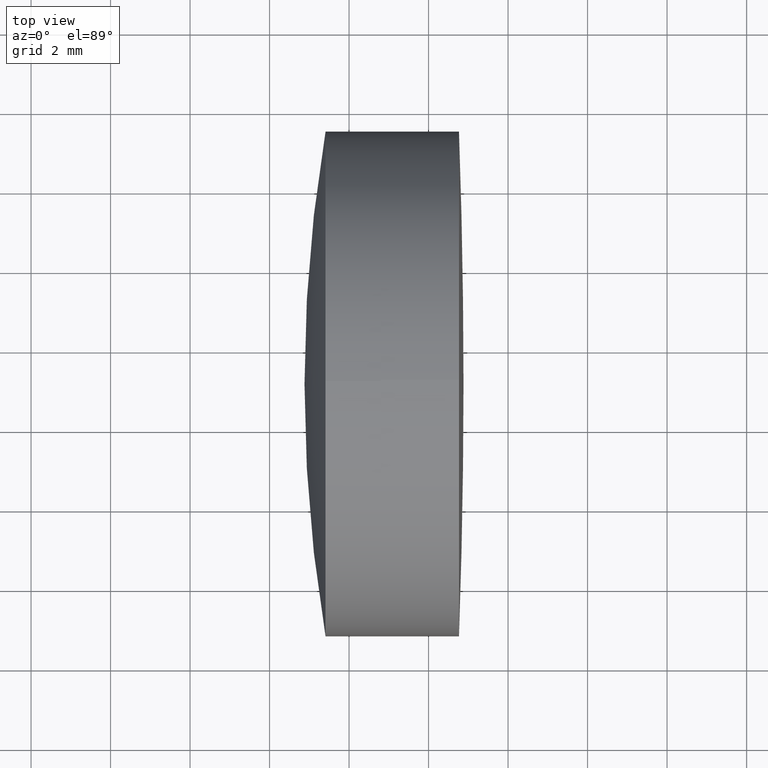
[diagram: clean part render]
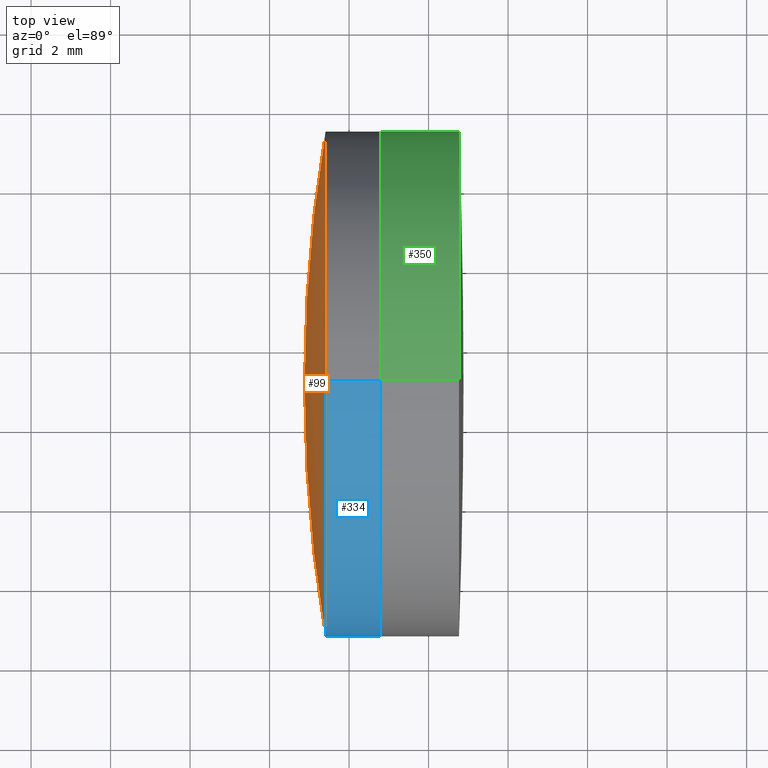
[diagram: same view with three faces highlighted in distinct colors, each labeled with its STEP entity id]
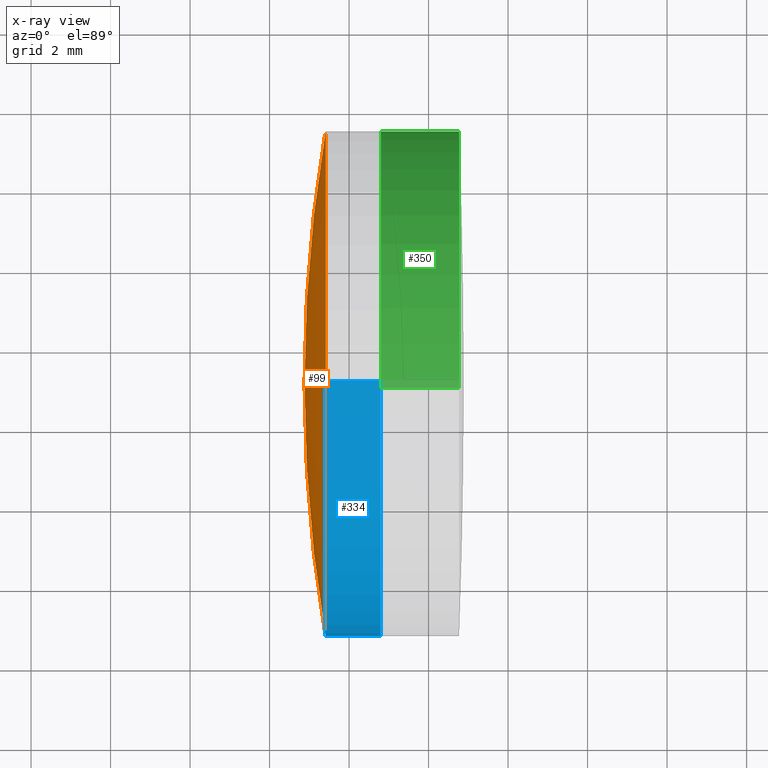
[diagram: x-ray of the same camera — body ghosted, the three highlighted faces saturated]
A machine part, top view with three faces highlighted in distinct colors.
The next image is the same camera in x-ray (body ghosted, the three faces saturated) — at least one of them is partly hidden behind the body in this view.
Their STEP definitions:

[orange] entity #99 — the highlighted spherical surface has radius 38.36 mm.
#4 = CARTESIAN_POINT ( 'NONE',  ( 39.23836059067149762, 7.105468109940514587, 7.561397270752400406E-15 ) ) ;
#18 = CIRCLE ( 'NONE', #285, 6.349999999999997868 ) ;
#44 = DIRECTION ( 'NONE',  ( 0.000000000000000000, -0.9999851727800013190, -0.005445568854653790904 ) ) ;
#53 = DIRECTION ( 'NONE',  ( 1.000000000000000000, -3.773785889902083684E-17, 1.040834085586084010E-16 ) ) ;
#55 = EDGE_CURVE ( 'NONE', #251, #302, #18, .T. ) ;
#57 = AXIS2_PLACEMENT_3D ( 'NONE', #4, #180, #44 ) ;
#67 = CARTESIAN_POINT ( 'NONE',  ( 1.407591367722823339, 0.7555622627875118180, -0.03457936222704791757 ) ) ;
#68 = EDGE_LOOP ( 'NONE', ( #215, #291, #382, #261 ) ) ;
#95 = AXIS2_PLACEMENT_3D ( 'NONE', #399, #126, #267 ) ;
#99 = ADVANCED_FACE ( 'NONE', ( #297 ), #166, .T. ) ;
#100 = CARTESIAN_POINT ( 'NONE',  ( 0.8783605906714925249, 7.105468109940518140, 3.581548665704631301E-15 ) ) ;
#103 = DIRECTION ( 'NONE',  ( 0.000000000000000000, 0.9999851727800013190, 0.005445568854653913202 ) ) ;
#122 = VERTEX_POINT ( 'NONE', #264 ) ;
#126 = DIRECTION ( 'NONE',  ( -1.042873694000733349E-16, -0.005445568854653913202, 0.9999851727800013190 ) ) ;
#137 = AXIS2_PLACEMENT_3D ( 'NONE', #441, #443, #103 ) ;
#139 = VERTEX_POINT ( 'NONE', #100 ) ;
#145 = AXIS2_PLACEMENT_3D ( 'NONE', #313, #178, #369 ) ;
#157 = CARTESIAN_POINT ( 'NONE',  ( 1.407591367722822895, 7.105468109940516364, 3.623841861633804095E-15 ) ) ;
#166 = SPHERICAL_SURFACE ( 'NONE', #95, 38.35999999999999943 ) ;
#178 = DIRECTION ( 'NONE',  ( 1.000000000000000000, -3.773785889902083684E-17, 1.040834085586084010E-16 ) ) ;
#180 = DIRECTION ( 'NONE',  ( -1.042873694000733349E-16, -0.005445568854653790904, 0.9999851727800014300 ) ) ;
#198 = CARTESIAN_POINT ( 'NONE',  ( 1.407591367722822229, 7.070888747713464539, 6.349905847153010541 ) ) ;
#215 = ORIENTED_EDGE ( 'NONE', *, *, #372, .F. ) ;
#216 = CIRCLE ( 'NONE', #137, 38.35999999999999943 ) ;
#251 = VERTEX_POINT ( 'NONE', #198 ) ;
#261 = ORIENTED_EDGE ( 'NONE', *, *, #296, .F. ) ;
#264 = CARTESIAN_POINT ( 'NONE',  ( 1.407591367722823783, 13.45537395709352069, 0.03457936222705594587 ) ) ;
#267 = DIRECTION ( 'NONE',  ( 0.000000000000000000, 0.9999851727800013190, 0.005445568854653913202 ) ) ;
#285 = AXIS2_PLACEMENT_3D ( 'NONE', #157, #53, #419 ) ;
#286 = CIRCLE ( 'NONE', #57, 38.35999999999999943 ) ;
#291 = ORIENTED_EDGE ( 'NONE', *, *, #439, .T. ) ;
#296 = EDGE_CURVE ( 'NONE', #122, #251, #336, .T. ) ;
#297 = FACE_OUTER_BOUND ( 'NONE', #68, .T. ) ;
#302 = VERTEX_POINT ( 'NONE', #67 ) ;
#313 = CARTESIAN_POINT ( 'NONE',  ( 1.407591367722822895, 7.105468109940516364, 3.623841861633804095E-15 ) ) ;
#336 = CIRCLE ( 'NONE', #145, 6.349999999999997868 ) ;
#369 = DIRECTION ( 'NONE',  ( 1.024442997624099077E-16, 0.005445568854653865497, -0.9999851727800014300 ) ) ;
#372 = EDGE_CURVE ( 'NONE', #139, #122, #216, .T. ) ;
#382 = ORIENTED_EDGE ( 'NONE', *, *, #55, .F. ) ;
#399 = CARTESIAN_POINT ( 'NONE',  ( 39.23836059067149762, 7.105468109940514587, 7.561397270752400406E-15 ) ) ;
#419 = DIRECTION ( 'NONE',  ( 1.024442997624099077E-16, 0.005445568854653865497, -0.9999851727800014300 ) ) ;
#439 = EDGE_CURVE ( 'NONE', #139, #302, #286, .T. ) ;
#441 = CARTESIAN_POINT ( 'NONE',  ( 39.23836059067149762, 7.105468109940514587, 7.561397270752400406E-15 ) ) ;
#443 = DIRECTION ( 'NONE',  ( 1.042873694000733349E-16, 0.005445568854653913202, -0.9999851727800014300 ) ) ;

[blue] entity #334 — the highlighted cylindrical surface (partial cylindrical patch) has radius 6.35 mm, axis along (1, -0, 0).
#2 = CARTESIAN_POINT ( 'NONE',  ( 1.407591367722822895, 7.105468109940516364, 3.623841861633804095E-15 ) ) ;
#9 = DIRECTION ( 'NONE',  ( 1.000000000000000000, -3.773785889902083684E-17, 1.040834085586084010E-16 ) ) ;
#17 = DIRECTION ( 'NONE',  ( 1.000000000000000000, -3.773785889902083684E-17, 1.040834085586084010E-16 ) ) ;
#18 = CIRCLE ( 'NONE', #285, 6.349999999999997868 ) ;
#23 = EDGE_CURVE ( 'NONE', #251, #115, #86, .T. ) ;
#25 = AXIS2_PLACEMENT_3D ( 'NONE', #252, #9, #365 ) ;
#29 = ORIENTED_EDGE ( 'NONE', *, *, #55, .T. ) ;
#53 = DIRECTION ( 'NONE',  ( 1.000000000000000000, -3.773785889902083684E-17, 1.040834085586084010E-16 ) ) ;
#55 = EDGE_CURVE ( 'NONE', #251, #302, #18, .T. ) ;
#64 = CIRCLE ( 'NONE', #25, 6.349999999999997868 ) ;
#67 = CARTESIAN_POINT ( 'NONE',  ( 1.407591367722823339, 0.7555622627875118180, -0.03457936222704791757 ) ) ;
#75 = CARTESIAN_POINT ( 'NONE',  ( 3.378360590671493302, 7.105468109940516364, 3.828966239840701631E-15 ) ) ;
#81 = DIRECTION ( 'NONE',  ( 1.000000000000000000, -3.773785889902083684E-17, 1.040834085586084010E-16 ) ) ;
#86 = LINE ( 'NONE', #320, #179 ) ;
#88 = AXIS2_PLACEMENT_3D ( 'NONE', #2, #347, #205 ) ;
#96 = EDGE_CURVE ( 'NONE', #358, #175, #64, .T. ) ;
#113 = AXIS2_PLACEMENT_3D ( 'NONE', #75, #379, #203 ) ;
#115 = VERTEX_POINT ( 'NONE', #299 ) ;
#123 = EDGE_CURVE ( 'NONE', #115, #358, #266, .T. ) ;
#152 = VECTOR ( 'NONE', #17, 1000.000000000000000 ) ;
#157 = CARTESIAN_POINT ( 'NONE',  ( 1.407591367722822895, 7.105468109940516364, 3.623841861633804095E-15 ) ) ;
#164 = CARTESIAN_POINT ( 'NONE',  ( 2.796829142949971203, 7.105468109940516364, 3.768438464577824161E-15 ) ) ;
#169 = ORIENTED_EDGE ( 'NONE', *, *, #269, .T. ) ;
#175 = VERTEX_POINT ( 'NONE', #363 ) ;
#179 = VECTOR ( 'NONE', #81, 1000.000000000000000 ) ;
#193 = LINE ( 'NONE', #329, #152 ) ;
#198 = CARTESIAN_POINT ( 'NONE',  ( 1.407591367722822229, 7.070888747713464539, 6.349905847153010541 ) ) ;
#203 = DIRECTION ( 'NONE',  ( 1.365923996832132102E-16, 0.005445568854653865497, -0.9999851727800014300 ) ) ;
#205 = DIRECTION ( 'NONE',  ( 1.024442997624099077E-16, 0.005445568854653865497, -0.9999851727800014300 ) ) ;
#206 = ORIENTED_EDGE ( 'NONE', *, *, #225, .T. ) ;
#213 = EDGE_LOOP ( 'NONE', ( #370, #29, #169, #206, #361, #274 ) ) ;
#225 = EDGE_CURVE ( 'NONE', #422, #175, #193, .T. ) ;
#230 = DIRECTION ( 'NONE',  ( 1.365923996832132102E-16, 0.005445568854653865497, -0.9999851727800014300 ) ) ;
#240 = CYLINDRICAL_SURFACE ( 'NONE', #113, 6.349999999999997868 ) ;
#247 = FACE_OUTER_BOUND ( 'NONE', #213, .T. ) ;
#251 = VERTEX_POINT ( 'NONE', #198 ) ;
#252 = CARTESIAN_POINT ( 'NONE',  ( 2.796829142949971203, 7.105468109940516364, 3.768438464577824161E-15 ) ) ;
#266 = CIRCLE ( 'NONE', #293, 6.349999999999997868 ) ;
#268 = DIRECTION ( 'NONE',  ( 1.000000000000000000, -3.773785889902083684E-17, 1.040834085586084010E-16 ) ) ;
#269 = EDGE_CURVE ( 'NONE', #302, #422, #351, .T. ) ;
#274 = ORIENTED_EDGE ( 'NONE', *, *, #123, .F. ) ;
#276 = CARTESIAN_POINT ( 'NONE',  ( 1.407591367722823561, 7.140047472167568188, -6.349905847153003435 ) ) ;
#280 = CARTESIAN_POINT ( 'NONE',  ( 2.796829142949971203, 0.7555622627875122621, -0.03457936222704854901 ) ) ;
#285 = AXIS2_PLACEMENT_3D ( 'NONE', #157, #53, #419 ) ;
#293 = AXIS2_PLACEMENT_3D ( 'NONE', #164, #268, #230 ) ;
#299 = CARTESIAN_POINT ( 'NONE',  ( 2.796829142949970315, 7.070888747713464539, 6.349905847153010541 ) ) ;
#302 = VERTEX_POINT ( 'NONE', #67 ) ;
#320 = CARTESIAN_POINT ( 'NONE',  ( 3.378360590671492414, 7.070888747713464539, 6.349905847153010541 ) ) ;
#329 = CARTESIAN_POINT ( 'NONE',  ( 3.378360590671494190, 7.140047472167568188, -6.349905847153003435 ) ) ;
#334 = ADVANCED_FACE ( 'NONE', ( #247 ), #240, .T. ) ;
#347 = DIRECTION ( 'NONE',  ( 1.000000000000000000, -3.773785889902083684E-17, 1.040834085586084010E-16 ) ) ;
#351 = CIRCLE ( 'NONE', #88, 6.349999999999997868 ) ;
#358 = VERTEX_POINT ( 'NONE', #280 ) ;
#361 = ORIENTED_EDGE ( 'NONE', *, *, #96, .F. ) ;
#363 = CARTESIAN_POINT ( 'NONE',  ( 2.796829142949972091, 7.140047472167568188, -6.349905847153003435 ) ) ;
#365 = DIRECTION ( 'NONE',  ( 1.365923996832132102E-16, 0.005445568854653865497, -0.9999851727800014300 ) ) ;
#370 = ORIENTED_EDGE ( 'NONE', *, *, #23, .F. ) ;
#379 = DIRECTION ( 'NONE',  ( 1.000000000000000000, -3.773785889902083684E-17, 1.040834085586084010E-16 ) ) ;
#419 = DIRECTION ( 'NONE',  ( 1.024442997624099077E-16, 0.005445568854653865497, -0.9999851727800014300 ) ) ;
#422 = VERTEX_POINT ( 'NONE', #276 ) ;

[green] entity #350 — the highlighted cylindrical surface (partial cylindrical patch) has radius 6.35 mm, axis along (-1, -0, -0).
#15 = VERTEX_POINT ( 'NONE', #323 ) ;
#21 = CARTESIAN_POINT ( 'NONE',  ( 4.764605047991459230, 13.45546810994060039, 0.000000000000000000 ) ) ;
#24 = DIRECTION ( 'NONE',  ( 0.000000000000000000, 0.000000000000000000, 1.000000000000000000 ) ) ;
#28 = CARTESIAN_POINT ( 'NONE',  ( 4.764605047991442355, 7.105468109940519028, 0.000000000000000000 ) ) ;
#30 = CARTESIAN_POINT ( 'NONE',  ( 4.764605047991442355, 7.105468109940519028, 6.349999999999999645 ) ) ;
#37 = ORIENTED_EDGE ( 'NONE', *, *, #395, .T. ) ;
#38 = EDGE_CURVE ( 'NONE', #248, #190, #151, .T. ) ;
#39 = DIRECTION ( 'NONE',  ( -1.000000000000000000, -0.000000000000000000, -0.000000000000000000 ) ) ;
#63 = DIRECTION ( 'NONE',  ( -1.000000000000000000, -0.000000000000000000, -0.000000000000000000 ) ) ;
#69 = DIRECTION ( 'NONE',  ( -1.000000000000000000, -0.000000000000000000, -0.000000000000000000 ) ) ;
#71 = CIRCLE ( 'NONE', #253, 6.349999999999999645 ) ;
#74 = EDGE_CURVE ( 'NONE', #405, #309, #148, .T. ) ;
#89 = CIRCLE ( 'NONE', #229, 6.349999999999999645 ) ;
#90 = ORIENTED_EDGE ( 'NONE', *, *, #38, .T. ) ;
#102 = CARTESIAN_POINT ( 'NONE',  ( 2.796829142949964986, 7.105468109940519028, 0.000000000000000000 ) ) ;
#108 = DIRECTION ( 'NONE',  ( -1.000000000000000000, -0.000000000000000000, -0.000000000000000000 ) ) ;
#144 = ORIENTED_EDGE ( 'NONE', *, *, #74, .F. ) ;
#148 = LINE ( 'NONE', #283, #277 ) ;
#151 = LINE ( 'NONE', #188, #200 ) ;
#172 = EDGE_LOOP ( 'NONE', ( #211, #90, #411, #327, #144, #37 ) ) ;
#174 = CARTESIAN_POINT ( 'NONE',  ( 4.764605047991442355, 7.105468109940519028, 0.000000000000000000 ) ) ;
#176 = FACE_OUTER_BOUND ( 'NONE', #172, .T. ) ;
#186 = EDGE_CURVE ( 'NONE', #15, #190, #71, .T. ) ;
#188 = CARTESIAN_POINT ( 'NONE',  ( 3.378360590671490193, 7.105468109940519916, -6.349999999999999645 ) ) ;
#190 = VERTEX_POINT ( 'NONE', #295 ) ;
#200 = VECTOR ( 'NONE', #220, 1000.000000000000000 ) ;
#208 = DIRECTION ( 'NONE',  ( 0.000000000000000000, 0.000000000000000000, 1.000000000000000000 ) ) ;
#211 = ORIENTED_EDGE ( 'NONE', *, *, #359, .T. ) ;
#220 = DIRECTION ( 'NONE',  ( -1.000000000000000000, -0.000000000000000000, -0.000000000000000000 ) ) ;
#229 = AXIS2_PLACEMENT_3D ( 'NONE', #371, #69, #342 ) ;
#238 = DIRECTION ( 'NONE',  ( 0.000000000000000000, 0.000000000000000000, 1.000000000000000000 ) ) ;
#242 = VERTEX_POINT ( 'NONE', #21 ) ;
#248 = VERTEX_POINT ( 'NONE', #429 ) ;
#253 = AXIS2_PLACEMENT_3D ( 'NONE', #102, #63, #24 ) ;
#257 = DIRECTION ( 'NONE',  ( -1.000000000000000000, -0.000000000000000000, -0.000000000000000000 ) ) ;
#271 = AXIS2_PLACEMENT_3D ( 'NONE', #275, #339, #338 ) ;
#275 = CARTESIAN_POINT ( 'NONE',  ( 3.378360590671490193, 7.105468109940519028, 0.000000000000000000 ) ) ;
#277 = VECTOR ( 'NONE', #257, 1000.000000000000000 ) ;
#279 = CIRCLE ( 'NONE', #376, 6.349999999999999645 ) ;
#283 = CARTESIAN_POINT ( 'NONE',  ( 3.378360590671490193, 7.105468109940519028, 6.349999999999999645 ) ) ;
#295 = CARTESIAN_POINT ( 'NONE',  ( 2.796829142949964986, 7.105468109940519916, -6.349999999999999645 ) ) ;
#309 = VERTEX_POINT ( 'NONE', #345 ) ;
#311 = CYLINDRICAL_SURFACE ( 'NONE', #271, 6.349999999999999645 ) ;
#316 = AXIS2_PLACEMENT_3D ( 'NONE', #174, #39, #208 ) ;
#323 = CARTESIAN_POINT ( 'NONE',  ( 2.796829142949964986, 13.45546810994050624, 0.000000000000000000 ) ) ;
#327 = ORIENTED_EDGE ( 'NONE', *, *, #410, .F. ) ;
#338 = DIRECTION ( 'NONE',  ( 0.000000000000000000, 0.000000000000000000, 1.000000000000000000 ) ) ;
#339 = DIRECTION ( 'NONE',  ( -1.000000000000000000, -0.000000000000000000, -0.000000000000000000 ) ) ;
#342 = DIRECTION ( 'NONE',  ( 0.000000000000000000, 0.000000000000000000, 1.000000000000000000 ) ) ;
#345 = CARTESIAN_POINT ( 'NONE',  ( 2.796829142949964986, 7.105468109940519028, 6.349999999999999645 ) ) ;
#350 = ADVANCED_FACE ( 'NONE', ( #176 ), #311, .T. ) ;
#353 = CIRCLE ( 'NONE', #316, 6.349999999999999645 ) ;
#359 = EDGE_CURVE ( 'NONE', #242, #248, #353, .T. ) ;
#371 = CARTESIAN_POINT ( 'NONE',  ( 2.796829142949964986, 7.105468109940519028, 0.000000000000000000 ) ) ;
#376 = AXIS2_PLACEMENT_3D ( 'NONE', #28, #108, #238 ) ;
#395 = EDGE_CURVE ( 'NONE', #405, #242, #279, .T. ) ;
#405 = VERTEX_POINT ( 'NONE', #30 ) ;
#410 = EDGE_CURVE ( 'NONE', #309, #15, #89, .T. ) ;
#411 = ORIENTED_EDGE ( 'NONE', *, *, #186, .F. ) ;
#429 = CARTESIAN_POINT ( 'NONE',  ( 4.764605047991442355, 7.105468109940519916, -6.349999999999999645 ) ) ;